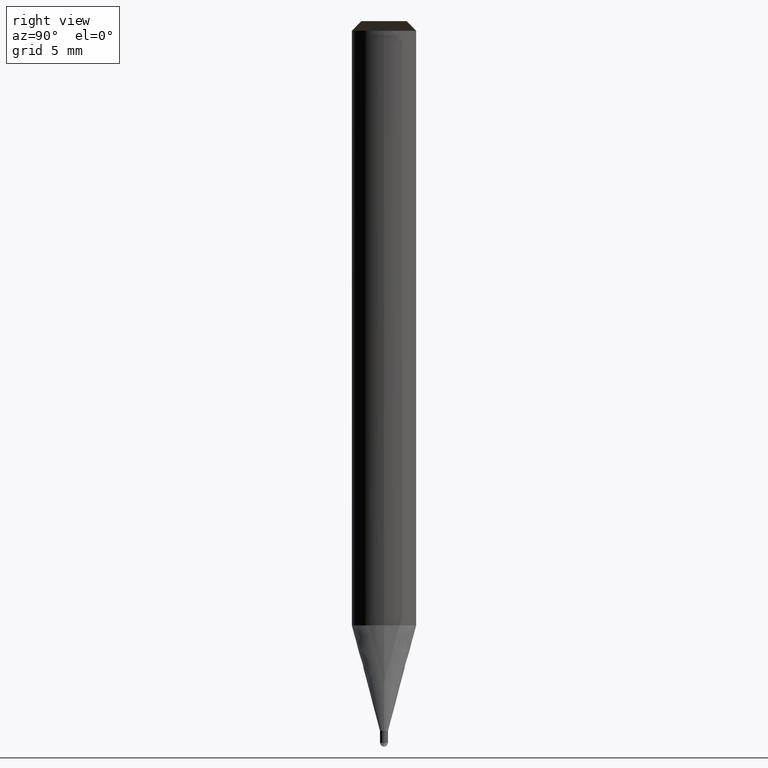
[diagram: clean part render]
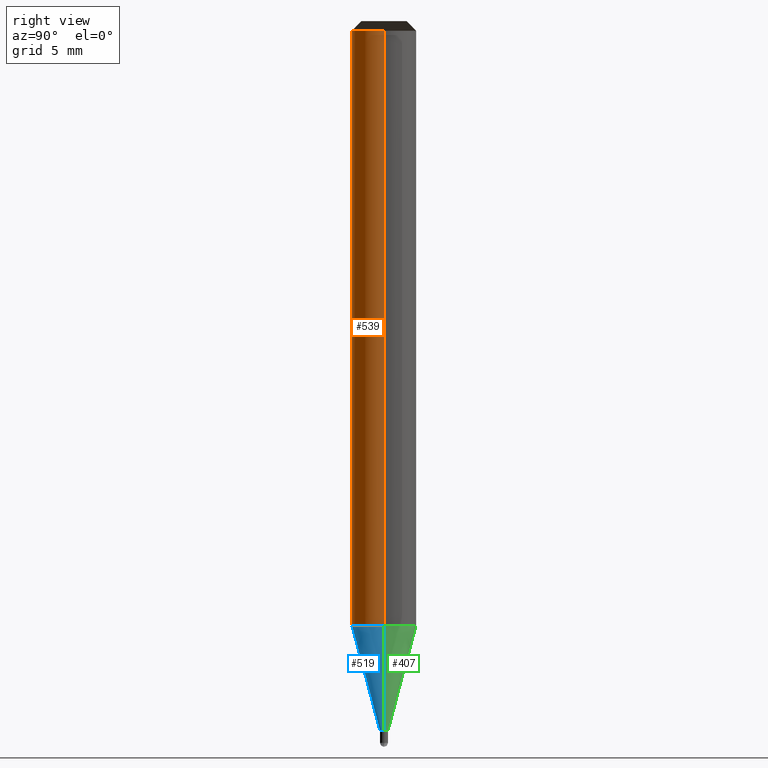
[diagram: same view with three faces highlighted in distinct colors, each labeled with its STEP entity id]
A machine part, right view with three faces highlighted in distinct colors.
Their STEP definitions:

[orange] entity #539 — the highlighted face is a freeform B-spline surface patch.
#211=CARTESIAN_POINT('',(2.0,0.0,0.0));
#215=CARTESIAN_POINT('',(-2.0,0.0,0.0));
#216=CARTESIAN_POINT('',(2.0,0.0,36.868));
#220=CARTESIAN_POINT('',(-2.0,0.0,36.868));
#230=CARTESIAN_POINT('',(-2.0,-2.0,0.0));
#231=CARTESIAN_POINT('',(0.0,-2.0,0.0));
#232=CARTESIAN_POINT('',(2.0,-2.0,0.0));
#233=CARTESIAN_POINT('',(-2.0,-2.0,36.868));
#234=CARTESIAN_POINT('',(0.0,-2.0,36.868));
#235=CARTESIAN_POINT('',(2.0,-2.0,36.868));
#520=(
BOUNDED_SURFACE()
B_SPLINE_SURFACE(1,2,(
(#215,#230,#231,#232,#211),
(#220,#233,#234,#235,#216)
), .UNSPECIFIED.,.F.,.F.,.F.)
B_SPLINE_SURFACE_WITH_KNOTS((2,2),(3,2,3),(
0.0,1.0),(
0.0,0.5,1.0), .UNSPECIFIED.)
GEOMETRIC_REPRESENTATION_ITEM()
RATIONAL_B_SPLINE_SURFACE(((1.0,0.707106781187,1.0,0.707106781187,1.0),
(1.0,0.707106781187,1.0,0.707106781187,1.0)
))
REPRESENTATION_ITEM('')
SURFACE()
);
#521=(
BOUNDED_CURVE()
B_SPLINE_CURVE(1,(#220,#215),.UNSPECIFIED.,.F.,.F.)
B_SPLINE_CURVE_WITH_KNOTS((2,2),
(0.0,1.0),.UNSPECIFIED.)
CURVE()
GEOMETRIC_REPRESENTATION_ITEM()
RATIONAL_B_SPLINE_CURVE((1.0,1.0))
REPRESENTATION_ITEM('')
);
#522=(
BOUNDED_CURVE()
B_SPLINE_CURVE(2,(#215,#230,#231,#232,#211),.UNSPECIFIED.,.F.,.F.)
B_SPLINE_CURVE_WITH_KNOTS((3,2,3),
(0.0,0.5,1.0),.UNSPECIFIED.)
CURVE()
GEOMETRIC_REPRESENTATION_ITEM()
RATIONAL_B_SPLINE_CURVE((1.0,0.707106781187,1.0,0.707106781187,1.0))
REPRESENTATION_ITEM('')
);
#523=(
BOUNDED_CURVE()
B_SPLINE_CURVE(1,(#211,#216),.UNSPECIFIED.,.F.,.F.)
B_SPLINE_CURVE_WITH_KNOTS((2,2),
(0.0,1.0),.UNSPECIFIED.)
CURVE()
GEOMETRIC_REPRESENTATION_ITEM()
RATIONAL_B_SPLINE_CURVE((1.0,1.0))
REPRESENTATION_ITEM('')
);
#524=(
BOUNDED_CURVE()
B_SPLINE_CURVE(2,(#216,#235,#234,#233,#220),.UNSPECIFIED.,.F.,.F.)
B_SPLINE_CURVE_WITH_KNOTS((3,2,3),
(0.0,0.5,1.0),.UNSPECIFIED.)
CURVE()
GEOMETRIC_REPRESENTATION_ITEM()
RATIONAL_B_SPLINE_CURVE((1.0,0.707106781187,1.0,0.707106781187,1.0))
REPRESENTATION_ITEM('')
);
#525=VERTEX_POINT('',#211);
#526=VERTEX_POINT('',#215);
#527=VERTEX_POINT('',#216);
#528=VERTEX_POINT('',#220);
#529=EDGE_CURVE('',#528,#526,#521,.T.);
#530=EDGE_CURVE('',#526,#525,#522,.T.);
#531=EDGE_CURVE('',#525,#527,#523,.T.);
#532=EDGE_CURVE('',#527,#528,#524,.T.);
#533=ORIENTED_EDGE('',*,*,#529,.T.);
#534=ORIENTED_EDGE('',*,*,#530,.T.);
#535=ORIENTED_EDGE('',*,*,#531,.T.);
#536=ORIENTED_EDGE('',*,*,#532,.T.);
#537=EDGE_LOOP('',(#533,#534,#535,#536));
#538=FACE_OUTER_BOUND('',#537,.T.);
#539=ADVANCED_FACE('',(#538),#520,.T.);

[blue] entity #519 — the highlighted face is a freeform B-spline surface patch.
#206=CARTESIAN_POINT('',(0.25,0.0,-6.531088913246));
#210=CARTESIAN_POINT('',(-0.25,0.0,-6.531088913246));
#211=CARTESIAN_POINT('',(2.0,0.0,0.0));
#215=CARTESIAN_POINT('',(-2.0,0.0,0.0));
#227=CARTESIAN_POINT('',(-0.25,-0.25,-6.531088913246));
#228=CARTESIAN_POINT('',(0.0,-0.25,-6.531088913246));
#229=CARTESIAN_POINT('',(0.25,-0.25,-6.531088913246));
#230=CARTESIAN_POINT('',(-2.0,-2.0,0.0));
#231=CARTESIAN_POINT('',(0.0,-2.0,0.0));
#232=CARTESIAN_POINT('',(2.0,-2.0,0.0));
#500=(
BOUNDED_SURFACE()
B_SPLINE_SURFACE(1,2,(
(#210,#227,#228,#229,#206),
(#215,#230,#231,#232,#211)
), .UNSPECIFIED.,.F.,.F.,.F.)
B_SPLINE_SURFACE_WITH_KNOTS((2,2),(3,2,3),(
0.0,1.0),(
0.0,0.5,1.0), .UNSPECIFIED.)
GEOMETRIC_REPRESENTATION_ITEM()
RATIONAL_B_SPLINE_SURFACE(((1.0,0.707106781187,1.0,0.707106781187,1.0),
(1.0,0.707106781187,1.0,0.707106781187,1.0)
))
REPRESENTATION_ITEM('')
SURFACE()
);
#501=(
BOUNDED_CURVE()
B_SPLINE_CURVE(1,(#215,#210),.UNSPECIFIED.,.F.,.F.)
B_SPLINE_CURVE_WITH_KNOTS((2,2),
(0.0,1.0),.UNSPECIFIED.)
CURVE()
GEOMETRIC_REPRESENTATION_ITEM()
RATIONAL_B_SPLINE_CURVE((1.0,1.0))
REPRESENTATION_ITEM('')
);
#502=(
BOUNDED_CURVE()
B_SPLINE_CURVE(2,(#210,#227,#228,#229,#206),.UNSPECIFIED.,.F.,.F.)
B_SPLINE_CURVE_WITH_KNOTS((3,2,3),
(0.0,0.5,1.0),.UNSPECIFIED.)
CURVE()
GEOMETRIC_REPRESENTATION_ITEM()
RATIONAL_B_SPLINE_CURVE((1.0,0.707106781187,1.0,0.707106781187,1.0))
REPRESENTATION_ITEM('')
);
#503=(
BOUNDED_CURVE()
B_SPLINE_CURVE(1,(#206,#211),.UNSPECIFIED.,.F.,.F.)
B_SPLINE_CURVE_WITH_KNOTS((2,2),
(0.0,1.0),.UNSPECIFIED.)
CURVE()
GEOMETRIC_REPRESENTATION_ITEM()
RATIONAL_B_SPLINE_CURVE((1.0,1.0))
REPRESENTATION_ITEM('')
);
#504=(
BOUNDED_CURVE()
B_SPLINE_CURVE(2,(#211,#232,#231,#230,#215),.UNSPECIFIED.,.F.,.F.)
B_SPLINE_CURVE_WITH_KNOTS((3,2,3),
(0.0,0.5,1.0),.UNSPECIFIED.)
CURVE()
GEOMETRIC_REPRESENTATION_ITEM()
RATIONAL_B_SPLINE_CURVE((1.0,0.707106781187,1.0,0.707106781187,1.0))
REPRESENTATION_ITEM('')
);
#505=VERTEX_POINT('',#206);
#506=VERTEX_POINT('',#210);
#507=VERTEX_POINT('',#211);
#508=VERTEX_POINT('',#215);
#509=EDGE_CURVE('',#508,#506,#501,.T.);
#510=EDGE_CURVE('',#506,#505,#502,.T.);
#511=EDGE_CURVE('',#505,#507,#503,.T.);
#512=EDGE_CURVE('',#507,#508,#504,.T.);
#513=ORIENTED_EDGE('',*,*,#509,.T.);
#514=ORIENTED_EDGE('',*,*,#510,.T.);
#515=ORIENTED_EDGE('',*,*,#511,.T.);
#516=ORIENTED_EDGE('',*,*,#512,.T.);
#517=EDGE_LOOP('',(#513,#514,#515,#516));
#518=FACE_OUTER_BOUND('',#517,.T.);
#519=ADVANCED_FACE('',(#518),#500,.T.);

[green] entity #407 — the highlighted face is a freeform B-spline surface patch.
#206=CARTESIAN_POINT('',(0.25,0.0,-6.531088913246));
#207=CARTESIAN_POINT('',(0.25,0.25,-6.531088913246));
#208=CARTESIAN_POINT('',(0.0,0.25,-6.531088913246));
#209=CARTESIAN_POINT('',(-0.25,0.25,-6.531088913246));
#210=CARTESIAN_POINT('',(-0.25,0.0,-6.531088913246));
#211=CARTESIAN_POINT('',(2.0,0.0,0.0));
#212=CARTESIAN_POINT('',(2.0,2.0,0.0));
#213=CARTESIAN_POINT('',(0.0,2.0,0.0));
#214=CARTESIAN_POINT('',(-2.0,2.0,0.0));
#215=CARTESIAN_POINT('',(-2.0,0.0,0.0));
#388=(
BOUNDED_SURFACE()
B_SPLINE_SURFACE(1,2,(
(#206,#207,#208,#209,#210),
(#211,#212,#213,#214,#215)
), .UNSPECIFIED.,.F.,.F.,.F.)
B_SPLINE_SURFACE_WITH_KNOTS((2,2),(3,2,3),(
0.0,1.0),(
0.0,0.5,1.0), .UNSPECIFIED.)
GEOMETRIC_REPRESENTATION_ITEM()
RATIONAL_B_SPLINE_SURFACE(((1.0,0.707106781187,1.0,0.707106781187,1.0),
(1.0,0.707106781187,1.0,0.707106781187,1.0)
))
REPRESENTATION_ITEM('')
SURFACE()
);
#389=(
BOUNDED_CURVE()
B_SPLINE_CURVE(2,(#211,#212,#213,#214,#215),.UNSPECIFIED.,.F.,.F.)
B_SPLINE_CURVE_WITH_KNOTS((3,2,3),
(0.0,0.5,1.0),.UNSPECIFIED.)
CURVE()
GEOMETRIC_REPRESENTATION_ITEM()
RATIONAL_B_SPLINE_CURVE((1.0,0.707106781187,1.0,0.707106781187,1.0))
REPRESENTATION_ITEM('')
);
#390=(
BOUNDED_CURVE()
B_SPLINE_CURVE(1,(#215,#210),.UNSPECIFIED.,.F.,.F.)
B_SPLINE_CURVE_WITH_KNOTS((2,2),
(0.0,1.0),.UNSPECIFIED.)
CURVE()
GEOMETRIC_REPRESENTATION_ITEM()
RATIONAL_B_SPLINE_CURVE((1.0,1.0))
REPRESENTATION_ITEM('')
);
#391=(
BOUNDED_CURVE()
B_SPLINE_CURVE(2,(#210,#209,#208,#207,#206),.UNSPECIFIED.,.F.,.F.)
B_SPLINE_CURVE_WITH_KNOTS((3,2,3),
(0.0,0.5,1.0),.UNSPECIFIED.)
CURVE()
GEOMETRIC_REPRESENTATION_ITEM()
RATIONAL_B_SPLINE_CURVE((1.0,0.707106781187,1.0,0.707106781187,1.0))
REPRESENTATION_ITEM('')
);
#392=(
BOUNDED_CURVE()
B_SPLINE_CURVE(1,(#206,#211),.UNSPECIFIED.,.F.,.F.)
B_SPLINE_CURVE_WITH_KNOTS((2,2),
(0.0,1.0),.UNSPECIFIED.)
CURVE()
GEOMETRIC_REPRESENTATION_ITEM()
RATIONAL_B_SPLINE_CURVE((1.0,1.0))
REPRESENTATION_ITEM('')
);
#393=VERTEX_POINT('',#206);
#394=VERTEX_POINT('',#210);
#395=VERTEX_POINT('',#211);
#396=VERTEX_POINT('',#215);
#397=EDGE_CURVE('',#395,#396,#389,.T.);
#398=EDGE_CURVE('',#396,#394,#390,.T.);
#399=EDGE_CURVE('',#394,#393,#391,.T.);
#400=EDGE_CURVE('',#393,#395,#392,.T.);
#401=ORIENTED_EDGE('',*,*,#397,.T.);
#402=ORIENTED_EDGE('',*,*,#398,.T.);
#403=ORIENTED_EDGE('',*,*,#399,.T.);
#404=ORIENTED_EDGE('',*,*,#400,.T.);
#405=EDGE_LOOP('',(#401,#402,#403,#404));
#406=FACE_OUTER_BOUND('',#405,.T.);
#407=ADVANCED_FACE('',(#406),#388,.T.);